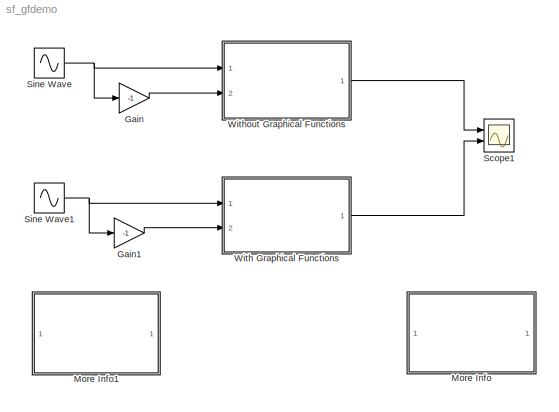
MODEL sf_gfdemo
KIND model
BLOCK [Gain] Gain
  Gain = -1
BLOCK [Gain] Gain1
  Gain = -1
BLOCK [SubSystem] More Info
  MaskDisplay = disp('Double click\\nhere for\\ninformation on\\nthis demonstration')
  MaskIconFrame = on
  MaskIconOpaque = on
  MaskIconRotate = none
  MaskIconUnits = autoscale
  MinAlgLoopOccurrences = off
  Ports = []
  PropExecContextAcrossSSBoundary = on
  RTWSystemCode = Auto
  TreatAsAtomicUnit = off
BLOCK [SubSystem] More Info1
  MaskDisplay = disp('Double click\\nhere for<path> Help')
  MaskIconFrame = on
  MaskIconOpaque = on
  MaskIconRotate = none
  MaskIconUnits = autoscale
  MinAlgLoopOccurrences = off
  OpenFcn = simcad(bdroot);
  Ports = []
  PropExecContextAcrossSSBoundary = on
  RTWSystemCode = Auto
  TreatAsAtomicUnit = off
BLOCK [Scope] Scope1
  DataFormat = StructureWithTime
  NumInputPorts = 2
  Ports = [2]
  SaveName = ScopeData1
  TimeRange = 10
  YMax = 1~1
  YMin = -0.5~-0.5
BLOCK [Sin] Sine Wave
  Ports = [0, 1]
  SampleTime = 0
  SineType = Time based
BLOCK [Sin] Sine Wave1
  Ports = [0, 1]
  SampleTime = 0
  SineType = Time based
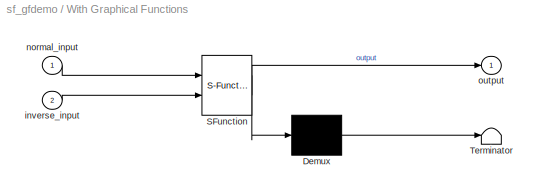
BLOCK [SubSystem] With Graphical Functions
  MaskDescription = Stateflow diagram
  MaskDisplay = plot(sf('Private','sfblk','xIcon'),sf('Private','sfblk','yIcon'));text(0.5,0,sf('Private', 'sfblk', 'tIcon'),'HorizontalAl','Center','VerticalAl','Bottom');
  MaskIconFrame = off
  MaskIconOpaque = off
  MaskIconRotate = none
  MaskIconUnits = autoscale
  MaskSelfModifiable = on
  MaskType = Stateflow
  MinAlgLoopOccurrences = off
  Ports = [2, 1]
  PropExecContextAcrossSSBoundary = on
  RTWSystemCode = Auto
  TreatAsAtomicUnit = off
BLOCK [Demux] With Graphical Functions/ Demux 
  Outputs = 1
  Ports = [1, 1]
BLOCK [S-Function] With Graphical Functions/ SFunction 
  FunctionName = sf_sfun
  PortCounts = [2 2]
  Ports = [2, 2]
  Tag = Stateflow S-Function sf_gfdemo 2
BLOCK [Terminator] With Graphical Functions/ Terminator 
BLOCK [Inport] With Graphical Functions/inverse_input
  IconDisplay = Port number
  LatchInput = off
  Port = 2
BLOCK [Inport] With Graphical Functions/normal_input
  IconDisplay = Port number
  LatchInput = off
  Port = 1
BLOCK [Outport] With Graphical Functions/output
  IconDisplay = Port number
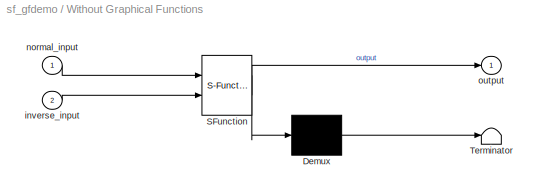
BLOCK [SubSystem] Without Graphical Functions
  MaskDescription = Stateflow diagram
  MaskDisplay = plot(sf('Private','sfblk','xIcon'),sf('Private','sfblk','yIcon'));text(0.5,0,sf('Private', 'sfblk', 'tIcon'),'HorizontalAl','Center','VerticalAl','Bottom');
  MaskIconFrame = off
  MaskIconOpaque = off
  MaskIconRotate = none
  MaskIconUnits = autoscale
  MaskSelfModifiable = on
  MaskType = Stateflow
  MinAlgLoopOccurrences = off
  Ports = [2, 1]
  PropExecContextAcrossSSBoundary = on
  RTWSystemCode = Auto
  TreatAsAtomicUnit = off
BLOCK [Demux] Without Graphical Functions/ Demux 
  Outputs = 1
  Ports = [1, 1]
BLOCK [S-Function] Without Graphical Functions/ SFunction 
  FunctionName = sf_sfun
  PortCounts = [2 2]
  Ports = [2, 2]
  Tag = Stateflow S-Function sf_gfdemo 1
BLOCK [Terminator] Without Graphical Functions/ Terminator 
BLOCK [Inport] Without Graphical Functions/inverse_input
  IconDisplay = Port number
  LatchInput = off
  Port = 2
BLOCK [Inport] Without Graphical Functions/normal_input
  IconDisplay = Port number
  LatchInput = off
  Port = 1
BLOCK [Outport] Without Graphical Functions/output
  IconDisplay = Port number
ANNOTATION More Info: Graphical Function Demonstration
ANNOTATION More Info: This demonstration shows the concept of a graphical function and how it can be used to simplify \nyour Stateflow model. In this example, we pass two inputs in the Stateflow chart. The first input is\na sine wave with magnitude 1 and a frequency of 2*pi and the second input is that same sine wave \nbut inverted. The Stateflow charts output only the positive values of both the input signals and also...<+977ch>
LINE Gain1:1 -> With Graphical Functions:2
LINE Gain:1 -> Without Graphical Functions:2
NET Sine Wave1:1 -> Gain1:1, With Graphical Functions:1
NET Sine Wave:1 -> Gain:1, Without Graphical Functions:1
LINE With Graphical Functions/ Demux :1 -> With Graphical Functions/ Terminator :1
LINE With Graphical Functions/ SFunction :1 -> With Graphical Functions/ Demux :1
LINE With Graphical Functions/ SFunction :2 -> With Graphical Functions/output:1
LINE With Graphical Functions/inverse_input:1 -> With Graphical Functions/ SFunction :2
LINE With Graphical Functions/normal_input:1 -> With Graphical Functions/ SFunction :1
LINE With Graphical Functions:1 -> Scope1:2
LINE Without Graphical Functions/ Demux :1 -> Without Graphical Functions/ Terminator :1
LINE Without Graphical Functions/ SFunction :1 -> Without Graphical Functions/ Demux :1
LINE Without Graphical Functions/ SFunction :2 -> Without Graphical Functions/output:1
LINE Without Graphical Functions/inverse_input:1 -> Without Graphical Functions/ SFunction :2
LINE Without Graphical Functions/normal_input:1 -> Without Graphical Functions/ SFunction :1
LINE Without Graphical Functions:1 -> Scope1:1
note: NET lines group one-source signal fan-out (src -> all destinations, sorted); 1:1 wires keep LINE
CHART Without Graphical Functions states=2 transitions=13
  STATE_LABEL 'Normal'
  STATE_LABEL 'Inverse'
CHART With Graphical Functions states=3 transitions=11
  STATE_LABEL 'Normal'
  STATE_LABEL 'Inverse'
  STATE_LABEL 'set_output_data(input)'
note: 1 file-system path scrubbed to <path> (not preserved elsewhere — flat text is the only slx artifact)
